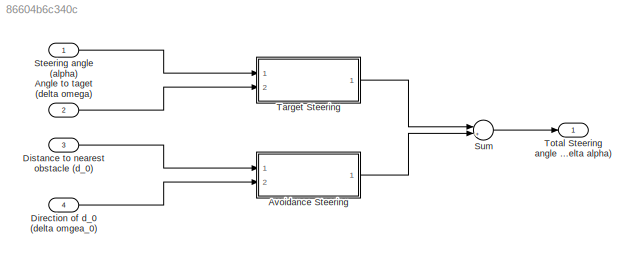
MODEL slx_86604b6c340c
KIND model
CONFIG AbsTol = auto
CONFIG EnableMultiTasking = off
CONFIG FixedStep = auto
CONFIG MaxStep = auto
CONFIG MinStep = auto
CONFIG RelTol = 1e-3
CONFIG SampleTimeConstraint = Unconstrained
CONFIG SolverName = VariableStepAuto
CONFIG StartTime = 0.0
CONFIG StopTime = 10.0
BLOCK [Inport] Angle to taget (delta omega)
  Port = 2
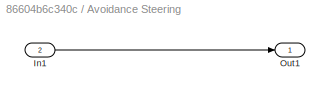
BLOCK [SubSystem] Avoidance Steering
  Ports = [2, 1]
  RequestExecContextInheritance = off
BLOCK [Inport] Avoidance Steering/In1
  Port = 2
BLOCK [Outport] Avoidance Steering/Out1
BLOCK [Inport] Direction of d_0 (delta omgea_0)
  Port = 4
BLOCK [Inport] Distance to nearest obstacle (d_0)
  Port = 3
BLOCK [Inport] Steering angle (alpha)
BLOCK [Sum] Sum
  Inputs = |++|
  Ports = [2, 1]
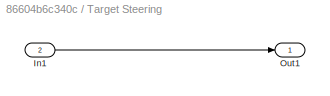
BLOCK [SubSystem] Target Steering
  Ports = [2, 1]
  RequestExecContextInheritance = off
BLOCK [Inport] Target Steering/In1
  Port = 2
BLOCK [Outport] Target Steering/Out1
BLOCK [Outport] Total Steering angle correction (delta alpha)
LINE Angle to taget (delta omega):1 -> Target Steering:2
LINE Avoidance Steering/In1:1 -> Avoidance Steering/Out1:1
LINE Avoidance Steering:1 -> Sum:2
LINE Direction of d_0 (delta omgea_0):1 -> Avoidance Steering:2
LINE Distance to nearest obstacle (d_0):1 -> Avoidance Steering:1
LINE Steering angle (alpha):1 -> Target Steering:1
LINE Sum:1 -> Total Steering angle correction (delta alpha):1
LINE Target Steering/In1:1 -> Target Steering/Out1:1
LINE Target Steering:1 -> Sum:1
